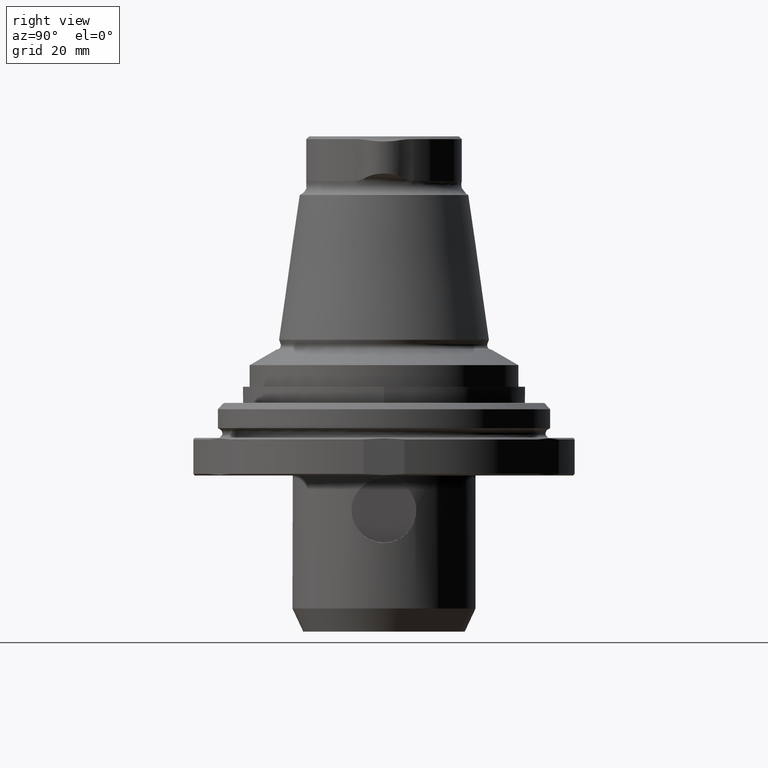
[diagram: clean part render]
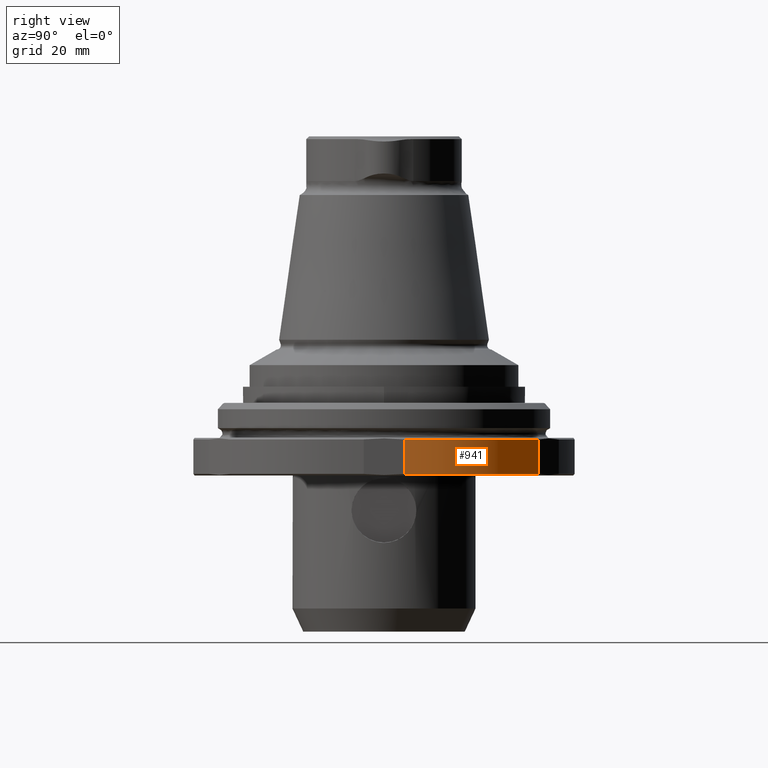
[diagram: same view with one face highlighted and labeled with its STEP entity id]
A machine part, right view. The second image highlights one B-rep face of the part: STEP entity #941.
In plain terms, the highlighted cylindrical surface (partial cylindrical patch) has radius 35.5 mm, axis along (-0, -0, -1).
Its self-contained STEP definition (entity closure, byte-faithful):
#47=LINE('',#1774,#75);
#48=LINE('',#1775,#76);
#75=VECTOR('',#1299,1000.);
#76=VECTOR('',#1300,1000.);
#143=CYLINDRICAL_SURFACE('',#1064,35.5);
#362=ORIENTED_EDGE('',*,*,#514,.F.);
#363=ORIENTED_EDGE('',*,*,#525,.T.);
#364=ORIENTED_EDGE('',*,*,#492,.T.);
#365=ORIENTED_EDGE('',*,*,#526,.T.);
#492=EDGE_CURVE('',#600,#599,#665,.T.);
#514=EDGE_CURVE('',#617,#618,#674,.T.);
#525=EDGE_CURVE('',#617,#600,#47,.F.);
#526=EDGE_CURVE('',#599,#618,#48,.T.);
#599=VERTEX_POINT('',#1669);
#600=VERTEX_POINT('',#1671);
#617=VERTEX_POINT('',#1744);
#618=VERTEX_POINT('',#1746);
#665=CIRCLE('',#1043,35.5);
#674=CIRCLE('',#1054,35.5);
#750=EDGE_LOOP('',(#362,#363,#364,#365));
#846=FACE_BOUND('',#750,.T.);
#941=ADVANCED_FACE('',(#846),#143,.T.);
#1043=AXIS2_PLACEMENT_3D('',#1670,#1247,#1248);
#1054=AXIS2_PLACEMENT_3D('',#1745,#1271,#1272);
#1064=AXIS2_PLACEMENT_3D('',#1773,#1297,#1298);
#1247=DIRECTION('',(-5.47430718319515E-16,-9.52839907700963E-18,-1.));
#1248=DIRECTION('',(-1.,8.32667268468868E-16,5.47430716006892E-16));
#1271=DIRECTION('',(-5.47430718319515E-16,-9.52839907700963E-18,-1.));
#1272=DIRECTION('',(-1.,8.32667268468868E-16,5.47430716006892E-16));
#1297=DIRECTION('',(-5.47430718319515E-16,-9.52839907700963E-18,-1.));
#1298=DIRECTION('',(-1.,8.32667268468868E-16,5.47430716006892E-16));
#1299=DIRECTION('',(-5.47430718319515E-16,-9.52839907700963E-18,-1.));
#1300=DIRECTION('',(-5.47430718319515E-16,-9.52839907700963E-18,-1.));
#1669=CARTESIAN_POINT('',(35.2999999999999,3.76297754444523,-1.30000000000002));
#1670=CARTESIAN_POINT('',(-8.83659486284364E-14,-9.81673936924985E-14,-1.3));
#1671=CARTESIAN_POINT('',(20.9088341473599,28.6892079813679,-1.30000000000001));
#1744=CARTESIAN_POINT('',(20.9088341473599,28.6892079813679,-7.70000000000002));
#1745=CARTESIAN_POINT('',(-9.18695052256813E-14,-9.82283754465914E-14,-7.70000000000001));
#1746=CARTESIAN_POINT('',(35.2999999999999,3.76297754444523,-7.70000000000003));
#1773=CARTESIAN_POINT('',(-8.82017194129406E-14,-9.81645351727754E-14,-1.));
#1774=CARTESIAN_POINT('',(20.9088341473599,28.6892079813679,-1.00000000000001));
#1775=CARTESIAN_POINT('',(35.2999999999999,3.76297754444523,-1.00000000000002));